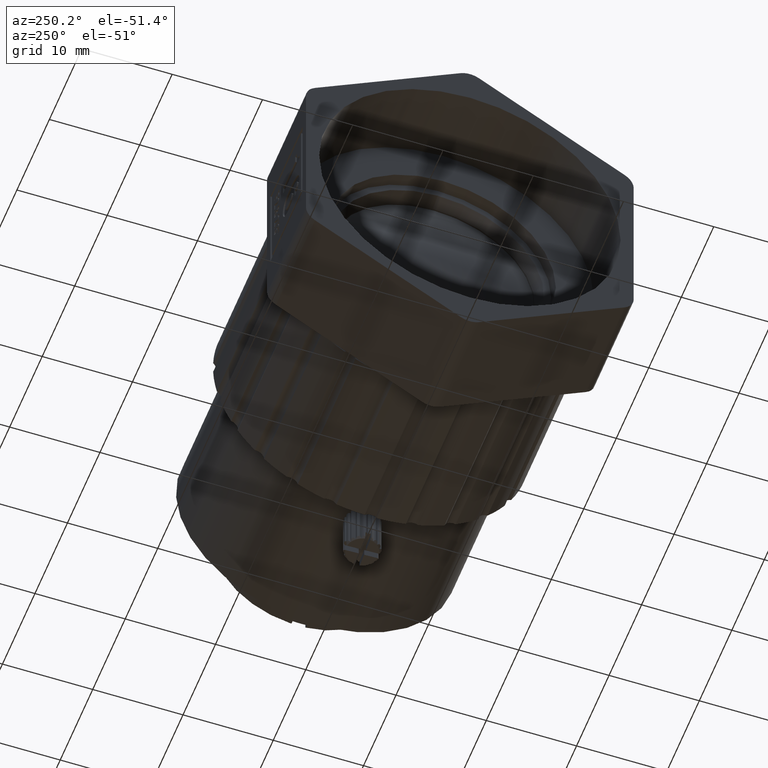
[diagram: clean part render]
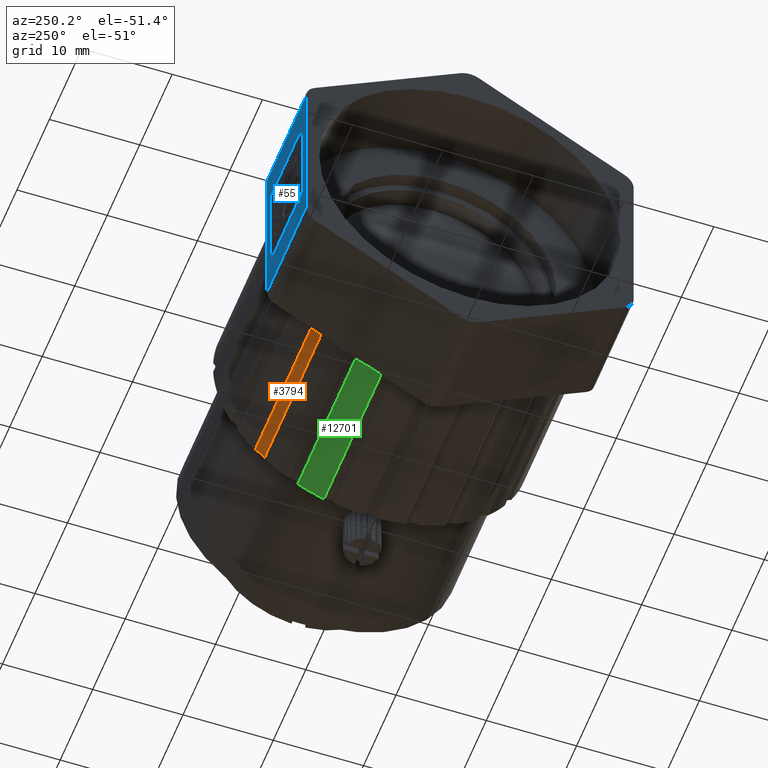
[diagram: same view with three faces highlighted in distinct colors, each labeled with its STEP entity id]
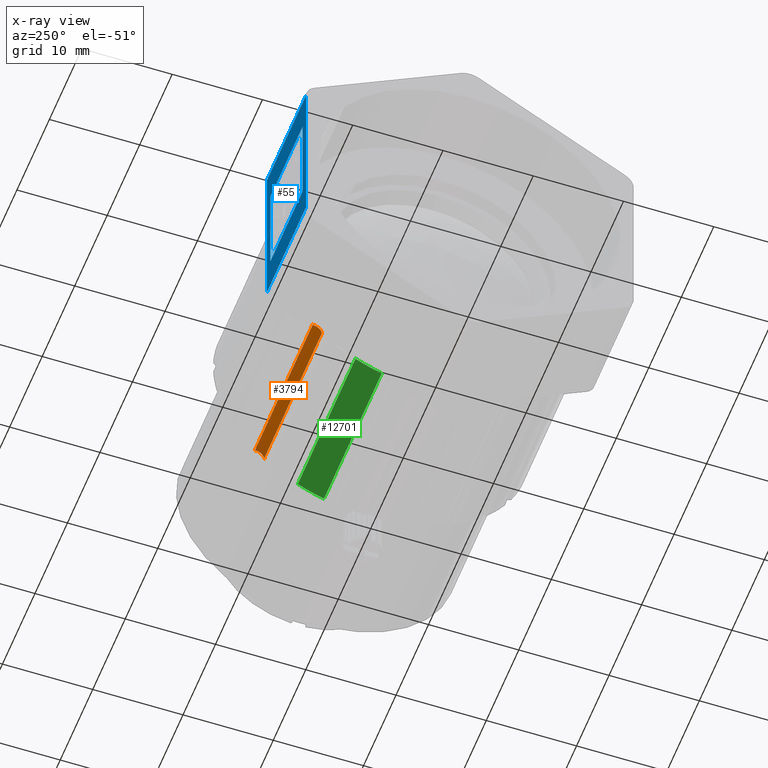
[diagram: x-ray of the same camera — body ghosted, the three highlighted faces saturated]
A machine part, auxiliary view with three faces highlighted in distinct colors.
The next image is the same camera in x-ray (body ghosted, the three faces saturated) — at least one of them is partly hidden behind the body in this view.
Their STEP definitions:

[orange] entity #3794 — the highlighted cylindrical surface (edge-blend (fillet) strip) has radius 1 mm, axis along (-1, -0, -0).
#33 = CARTESIAN_POINT ( 'NONE',  ( -16.06927024871701448, 12.21347487299340173, -12.86934341759522837 ) ) ;
#199 = VECTOR ( 'NONE', #14197, 1000.000000000000000 ) ;
#1627 = AXIS2_PLACEMENT_3D ( 'NONE', #33, #4534, #10451 ) ;
#1864 = DIRECTION ( 'NONE',  ( -1.000000000000000000, 0.000000000000000000, 0.000000000000000000 ) ) ;
#1986 = EDGE_CURVE ( 'NONE', #12140, #12848, #6494, .T. ) ;
#2037 = AXIS2_PLACEMENT_3D ( 'NONE', #3590, #5012, #11826 ) ;
#2155 = CARTESIAN_POINT ( 'NONE',  ( 1.705240452726131117, 11.21352918832341317, -12.87976587939364315 ) ) ;
#2629 = FACE_OUTER_BOUND ( 'NONE', #13400, .T. ) ;
#2842 = ORIENTED_EDGE ( 'NONE', *, *, #3435, .F. ) ;
#3339 = EDGE_CURVE ( 'NONE', #12848, #4179, #14786, .T. ) ;
#3435 = EDGE_CURVE ( 'NONE', #4179, #13090, #6247, .T. ) ;
#3590 = CARTESIAN_POINT ( 'NONE',  ( 1.705240452726131117, 12.21347487299340173, -12.86934341759522837 ) ) ;
#3687 = DIRECTION ( 'NONE',  ( -1.000000000000000000, -0.000000000000000000, -0.000000000000000000 ) ) ;
#3794 = ADVANCED_FACE ( 'NONE', ( #2629 ), #6082, .F. ) ;
#4179 = VERTEX_POINT ( 'NONE', #12299 ) ;
#4534 = DIRECTION ( 'NONE',  ( 1.000000000000000000, 0.000000000000000000, -0.000000000000000000 ) ) ;
#4708 = CARTESIAN_POINT ( 'NONE',  ( 1.705240452726131117, 12.22389733479178986, -11.86939773292527178 ) ) ;
#5012 = DIRECTION ( 'NONE',  ( 1.000000000000000000, 0.000000000000000000, 0.000000000000000000 ) ) ;
#6011 = DIRECTION ( 'NONE',  ( 0.000000000000000000, 0.000000000000000000, 1.000000000000000000 ) ) ;
#6082 = CYLINDRICAL_SURFACE ( 'NONE', #10955, 1.000000000000000888 ) ;
#6115 = ORIENTED_EDGE ( 'NONE', *, *, #1986, .F. ) ;
#6247 = LINE ( 'NONE', #14125, #199 ) ;
#6494 = LINE ( 'NONE', #13619, #8296 ) ;
#8296 = VECTOR ( 'NONE', #1864, 1000.000000000000000 ) ;
#8332 = CARTESIAN_POINT ( 'NONE',  ( 18.82828258385199760, 12.21347487299340173, -12.86934341759522837 ) ) ;
#8816 = ORIENTED_EDGE ( 'NONE', *, *, #3339, .F. ) ;
#9432 = CARTESIAN_POINT ( 'NONE',  ( -16.06927024871701448, 12.22389733479178986, -11.86939773292527178 ) ) ;
#10164 = CIRCLE ( 'NONE', #2037, 1.000000000000000888 ) ;
#10451 = DIRECTION ( 'NONE',  ( 0.000000000000000000, 0.000000000000000000, -1.000000000000000000 ) ) ;
#10955 = AXIS2_PLACEMENT_3D ( 'NONE', #8332, #3687, #6011 ) ;
#11826 = DIRECTION ( 'NONE',  ( 0.000000000000000000, 0.000000000000000000, 1.000000000000000000 ) ) ;
#12140 = VERTEX_POINT ( 'NONE', #4708 ) ;
#12299 = CARTESIAN_POINT ( 'NONE',  ( -16.06927024871701448, 11.21352918832341317, -12.87976587939364315 ) ) ;
#12845 = ORIENTED_EDGE ( 'NONE', *, *, #13998, .T. ) ;
#12848 = VERTEX_POINT ( 'NONE', #9432 ) ;
#13090 = VERTEX_POINT ( 'NONE', #2155 ) ;
#13400 = EDGE_LOOP ( 'NONE', ( #6115, #12845, #2842, #8816 ) ) ;
#13619 = CARTESIAN_POINT ( 'NONE',  ( 24.16039886190435482, 12.22389733479178986, -11.86939773292527001 ) ) ;
#13998 = EDGE_CURVE ( 'NONE', #12140, #13090, #10164, .T. ) ;
#14125 = CARTESIAN_POINT ( 'NONE',  ( 24.16039886190435482, 11.21352918832341317, -12.87976587939365913 ) ) ;
#14197 = DIRECTION ( 'NONE',  ( 1.000000000000000000, -0.000000000000000000, -0.000000000000000000 ) ) ;
#14786 = CIRCLE ( 'NONE', #1627, 1.000000000000000888 ) ;

[blue] entity #55 — the highlighted planar face has unit normal (0, 1, 0).
#55 = ADVANCED_FACE ( 'NONE', ( #9694, #10819 ), #13154, .T. ) ;
#167 = EDGE_LOOP ( 'NONE', ( #691, #11212, #5676, #11918 ) ) ;
#273 = VERTEX_POINT ( 'NONE', #10436 ) ;
#572 = LINE ( 'NONE', #6257, #10331 ) ;
#691 = ORIENTED_EDGE ( 'NONE', *, *, #5430, .T. ) ;
#1116 = DIRECTION ( 'NONE',  ( -1.000000000000000000, -0.000000000000000000, 0.000000000000000000 ) ) ;
#1144 = CARTESIAN_POINT ( 'NONE',  ( -28.67293126141579052, 17.49413145530454017, 9.324206847358055938 ) ) ;
#1153 = AXIS2_PLACEMENT_3D ( 'NONE', #3849, #1453, #6027 ) ;
#1453 = DIRECTION ( 'NONE',  ( 0.000000000000000000, 1.000000000000000000, 0.000000000000000000 ) ) ;
#1796 = LINE ( 'NONE', #8829, #9921 ) ;
#1887 = CARTESIAN_POINT ( 'NONE',  ( -27.62110075506640783, 17.49413145530454017, -5.400000000000109601 ) ) ;
#1967 = VERTEX_POINT ( 'NONE', #14751 ) ;
#2050 = DIRECTION ( 'NONE',  ( 1.000000000000000000, 0.000000000000000000, -0.000000000000000000 ) ) ;
#2801 = CARTESIAN_POINT ( 'NONE',  ( -28.67293126141579052, 17.49413145530454017, -9.324206847358812666 ) ) ;
#2944 = VECTOR ( 'NONE', #2050, 1000.000000000000000 ) ;
#3351 = EDGE_CURVE ( 'NONE', #11029, #3702, #4761, .T. ) ;
#3510 = CARTESIAN_POINT ( 'NONE',  ( -16.66927024871700524, 17.49413145530454017, -9.324206847358812666 ) ) ;
#3702 = VERTEX_POINT ( 'NONE', #1144 ) ;
#3849 = CARTESIAN_POINT ( 'NONE',  ( 38.77989565996298182, 17.49413145530454017, 10.47890738573664748 ) ) ;
#4166 = VECTOR ( 'NONE', #1116, 1000.000000000000000 ) ;
#4263 = EDGE_CURVE ( 'NONE', #273, #13129, #13716, .T. ) ;
#4299 = LINE ( 'NONE', #12319, #2944 ) ;
#4348 = DIRECTION ( 'NONE',  ( -0.000000000000000000, -0.000000000000000000, -1.000000000000000000 ) ) ;
#4489 = VERTEX_POINT ( 'NONE', #6291 ) ;
#4761 = LINE ( 'NONE', #9318, #11194 ) ;
#4796 = EDGE_CURVE ( 'NONE', #11511, #4489, #4299, .T. ) ;
#5167 = EDGE_LOOP ( 'NONE', ( #13238, #12187, #5434, #7998 ) ) ;
#5250 = DIRECTION ( 'NONE',  ( -0.000000000000000000, 0.000000000000000000, -1.000000000000000000 ) ) ;
#5269 = CARTESIAN_POINT ( 'NONE',  ( 38.77989565996298182, 17.49413145530454017, -9.324206847358812666 ) ) ;
#5430 = EDGE_CURVE ( 'NONE', #1967, #11511, #12065, .T. ) ;
#5434 = ORIENTED_EDGE ( 'NONE', *, *, #4263, .T. ) ;
#5676 = ORIENTED_EDGE ( 'NONE', *, *, #9404, .T. ) ;
#6027 = DIRECTION ( 'NONE',  ( 0.000000000000000000, -0.000000000000000000, 1.000000000000000000 ) ) ;
#6077 = EDGE_CURVE ( 'NONE', #11029, #13129, #11033, .T. ) ;
#6257 = CARTESIAN_POINT ( 'NONE',  ( -17.72110075506638793, 17.49413145530454017, 10.47890738573664748 ) ) ;
#6291 = CARTESIAN_POINT ( 'NONE',  ( -17.72110075506638793, 17.49413145530454017, -5.400000000000108713 ) ) ;
#6500 = DIRECTION ( 'NONE',  ( 1.000000000000000000, 0.000000000000000000, -0.000000000000000000 ) ) ;
#7025 = VECTOR ( 'NONE', #5250, 1000.000000000000000 ) ;
#7998 = ORIENTED_EDGE ( 'NONE', *, *, #6077, .F. ) ;
#8111 = EDGE_CURVE ( 'NONE', #12928, #1967, #10173, .T. ) ;
#8829 = CARTESIAN_POINT ( 'NONE',  ( 38.77989565996298182, 17.49413145530454017, 9.324206847358055938 ) ) ;
#9089 = DIRECTION ( 'NONE',  ( 0.000000000000000000, -0.000000000000000000, 1.000000000000000000 ) ) ;
#9318 = CARTESIAN_POINT ( 'NONE',  ( -28.67293126141579052, 17.49413145530454017, 10.47890738573664748 ) ) ;
#9404 = EDGE_CURVE ( 'NONE', #4489, #12928, #572, .T. ) ;
#9694 = FACE_OUTER_BOUND ( 'NONE', #5167, .T. ) ;
#9902 = DIRECTION ( 'NONE',  ( 1.000000000000000000, -0.000000000000000000, -0.000000000000000000 ) ) ;
#9921 = VECTOR ( 'NONE', #6500, 1000.000000000000000 ) ;
#10173 = LINE ( 'NONE', #14542, #4166 ) ;
#10331 = VECTOR ( 'NONE', #13306, 1000.000000000000000 ) ;
#10436 = CARTESIAN_POINT ( 'NONE',  ( -16.66927024871700524, 17.49413145530454017, 9.324206847358055938 ) ) ;
#10609 = VECTOR ( 'NONE', #4348, 1000.000000000000000 ) ;
#10819 = FACE_BOUND ( 'NONE', #167, .T. ) ;
#10865 = CARTESIAN_POINT ( 'NONE',  ( -17.72110075506638793, 17.49413145530454017, 5.399999999999889333 ) ) ;
#11029 = VERTEX_POINT ( 'NONE', #2801 ) ;
#11033 = LINE ( 'NONE', #5269, #13698 ) ;
#11194 = VECTOR ( 'NONE', #9089, 1000.000000000000000 ) ;
#11212 = ORIENTED_EDGE ( 'NONE', *, *, #4796, .T. ) ;
#11511 = VERTEX_POINT ( 'NONE', #1887 ) ;
#11918 = ORIENTED_EDGE ( 'NONE', *, *, #8111, .T. ) ;
#12065 = LINE ( 'NONE', #13410, #7025 ) ;
#12187 = ORIENTED_EDGE ( 'NONE', *, *, #12909, .T. ) ;
#12319 = CARTESIAN_POINT ( 'NONE',  ( 38.77989565996298182, 17.49413145530454017, -5.400000000000109601 ) ) ;
#12450 = CARTESIAN_POINT ( 'NONE',  ( -16.66927024871700524, 17.49413145530454017, -1.110223024625156540E-13 ) ) ;
#12909 = EDGE_CURVE ( 'NONE', #3702, #273, #1796, .T. ) ;
#12928 = VERTEX_POINT ( 'NONE', #10865 ) ;
#13129 = VERTEX_POINT ( 'NONE', #3510 ) ;
#13154 = PLANE ( 'NONE',  #1153 ) ;
#13238 = ORIENTED_EDGE ( 'NONE', *, *, #3351, .T. ) ;
#13306 = DIRECTION ( 'NONE',  ( 0.000000000000000000, -0.000000000000000000, 1.000000000000000000 ) ) ;
#13410 = CARTESIAN_POINT ( 'NONE',  ( -27.62110075506640783, 17.49413145530454017, 10.47890738573664748 ) ) ;
#13698 = VECTOR ( 'NONE', #9902, 1000.000000000000000 ) ;
#13716 = LINE ( 'NONE', #12450, #10609 ) ;
#14542 = CARTESIAN_POINT ( 'NONE',  ( 38.77989565996298182, 17.49413145530454017, 5.399999999999889333 ) ) ;
#14751 = CARTESIAN_POINT ( 'NONE',  ( -27.62110075506640783, 17.49413145530454017, 5.399999999999889333 ) ) ;

[green] entity #12701 — the highlighted cylindrical surface (partial cylindrical patch) has radius 17.5149 mm, axis along (1, -0, -0).
#609 = EDGE_CURVE ( 'NONE', #12908, #1705, #12596, .T. ) ;
#922 = DIRECTION ( 'NONE',  ( 1.000000000000000000, -0.000000000000000000, -0.000000000000000000 ) ) ;
#976 = FACE_OUTER_BOUND ( 'NONE', #5580, .T. ) ;
#1200 = CYLINDRICAL_SURFACE ( 'NONE', #8976, 17.51487857937816983 ) ;
#1205 = CARTESIAN_POINT ( 'NONE',  ( -16.06927024871701448, -0.6558685446018674980, -1.797607201980966352E-13 ) ) ;
#1565 = EDGE_CURVE ( 'NONE', #3852, #12908, #10689, .T. ) ;
#1705 = VERTEX_POINT ( 'NONE', #3520 ) ;
#1718 = CARTESIAN_POINT ( 'NONE',  ( 1.705240452726131117, 4.563637035286505217, -16.71908290403156627 ) ) ;
#2062 = VECTOR ( 'NONE', #922, 1000.000000000000000 ) ;
#2132 = ORIENTED_EDGE ( 'NONE', *, *, #1565, .T. ) ;
#2535 = CARTESIAN_POINT ( 'NONE',  ( 1.705240452726131117, 7.475560562079097693, -15.51292468664073532 ) ) ;
#3295 = CARTESIAN_POINT ( 'NONE',  ( 24.16039886190435482, 4.563637035286505217, -16.71908290403156272 ) ) ;
#3520 = CARTESIAN_POINT ( 'NONE',  ( -16.06927024871701448, 4.563637035286505217, -16.71908290403156627 ) ) ;
#3545 = LINE ( 'NONE', #11183, #2062 ) ;
#3852 = VERTEX_POINT ( 'NONE', #2535 ) ;
#4228 = AXIS2_PLACEMENT_3D ( 'NONE', #11020, #5322, #9056 ) ;
#5164 = EDGE_CURVE ( 'NONE', #1705, #12730, #9413, .T. ) ;
#5322 = DIRECTION ( 'NONE',  ( -1.000000000000000000, 0.000000000000000000, 0.000000000000000000 ) ) ;
#5580 = EDGE_LOOP ( 'NONE', ( #7553, #6509, #12114, #2132 ) ) ;
#6509 = ORIENTED_EDGE ( 'NONE', *, *, #5164, .T. ) ;
#7553 = ORIENTED_EDGE ( 'NONE', *, *, #609, .T. ) ;
#7938 = CARTESIAN_POINT ( 'NONE',  ( 24.16039886190435482, -0.6558685446018674980, -1.797607201980966352E-13 ) ) ;
#8018 = CARTESIAN_POINT ( 'NONE',  ( -16.06927024871701448, 7.475560562079097693, -15.51292468664073532 ) ) ;
#8976 = AXIS2_PLACEMENT_3D ( 'NONE', #7938, #11241, #8987 ) ;
#8987 = DIRECTION ( 'NONE',  ( 0.000000000000000000, 0.000000000000000000, -1.000000000000000000 ) ) ;
#9056 = DIRECTION ( 'NONE',  ( 0.000000000000000000, -1.776581105561892573E-15, -1.000000000000000000 ) ) ;
#9413 = CIRCLE ( 'NONE', #10619, 17.51487857937816983 ) ;
#9471 = VECTOR ( 'NONE', #10038, 1000.000000000000000 ) ;
#10038 = DIRECTION ( 'NONE',  ( -1.000000000000000000, 0.000000000000000000, 0.000000000000000000 ) ) ;
#10109 = EDGE_CURVE ( 'NONE', #12730, #3852, #3545, .T. ) ;
#10268 = DIRECTION ( 'NONE',  ( 0.000000000000000000, 0.000000000000000000, -1.000000000000000000 ) ) ;
#10339 = DIRECTION ( 'NONE',  ( 1.000000000000000000, -0.000000000000000000, -0.000000000000000000 ) ) ;
#10619 = AXIS2_PLACEMENT_3D ( 'NONE', #1205, #10339, #10268 ) ;
#10689 = CIRCLE ( 'NONE', #4228, 17.51487857937816983 ) ;
#11020 = CARTESIAN_POINT ( 'NONE',  ( 1.705240452726131117, -0.6558685446018674980, -1.797607201980966352E-13 ) ) ;
#11183 = CARTESIAN_POINT ( 'NONE',  ( 24.16039886190435482, 7.475560562079097693, -15.51292468664073354 ) ) ;
#11241 = DIRECTION ( 'NONE',  ( 1.000000000000000000, -0.000000000000000000, -0.000000000000000000 ) ) ;
#12114 = ORIENTED_EDGE ( 'NONE', *, *, #10109, .T. ) ;
#12596 = LINE ( 'NONE', #3295, #9471 ) ;
#12701 = ADVANCED_FACE ( 'NONE', ( #976 ), #1200, .T. ) ;
#12730 = VERTEX_POINT ( 'NONE', #8018 ) ;
#12908 = VERTEX_POINT ( 'NONE', #1718 ) ;